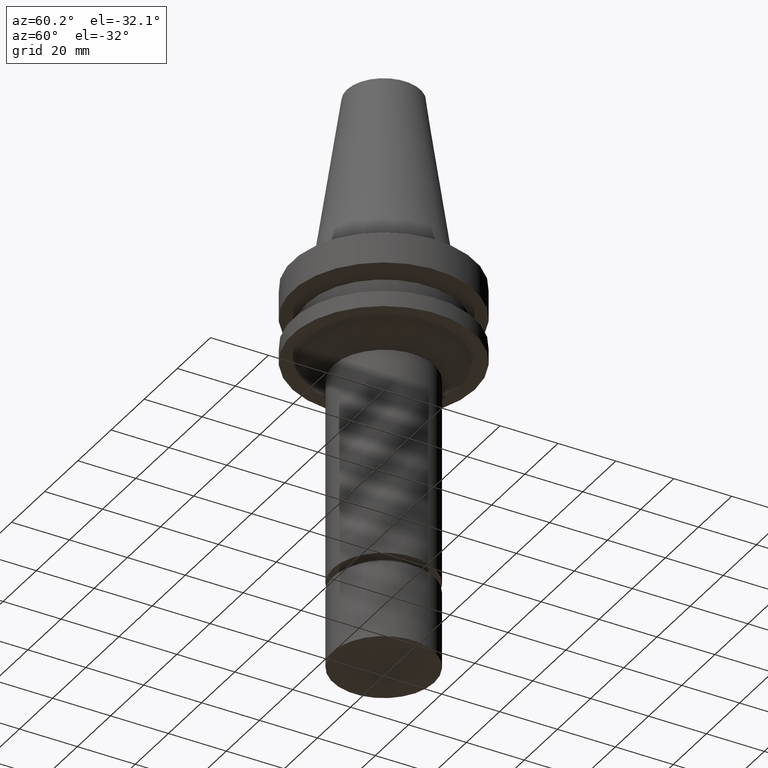
[diagram: clean part render]
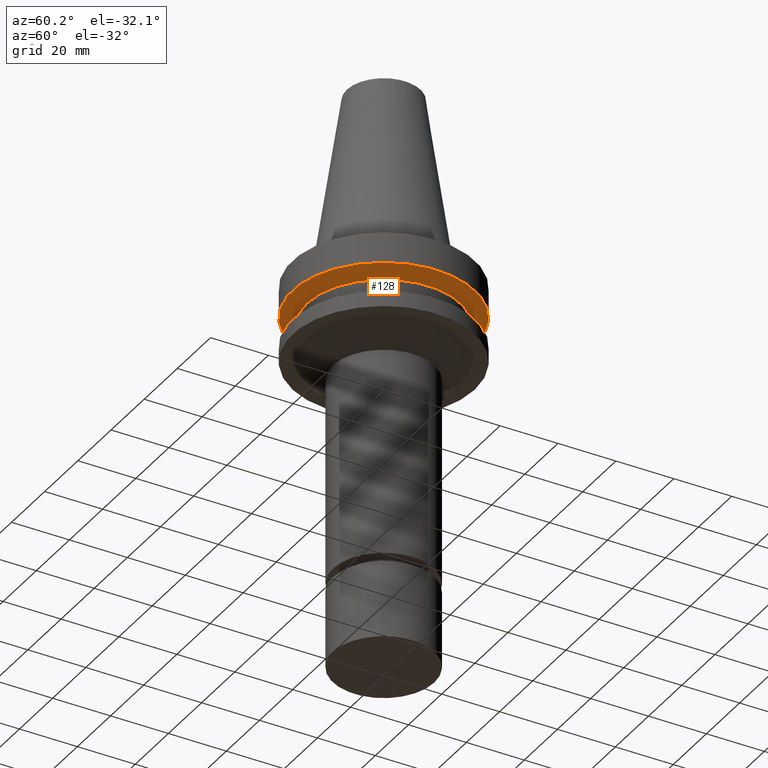
[diagram: same view with one face highlighted and labeled with its STEP entity id]
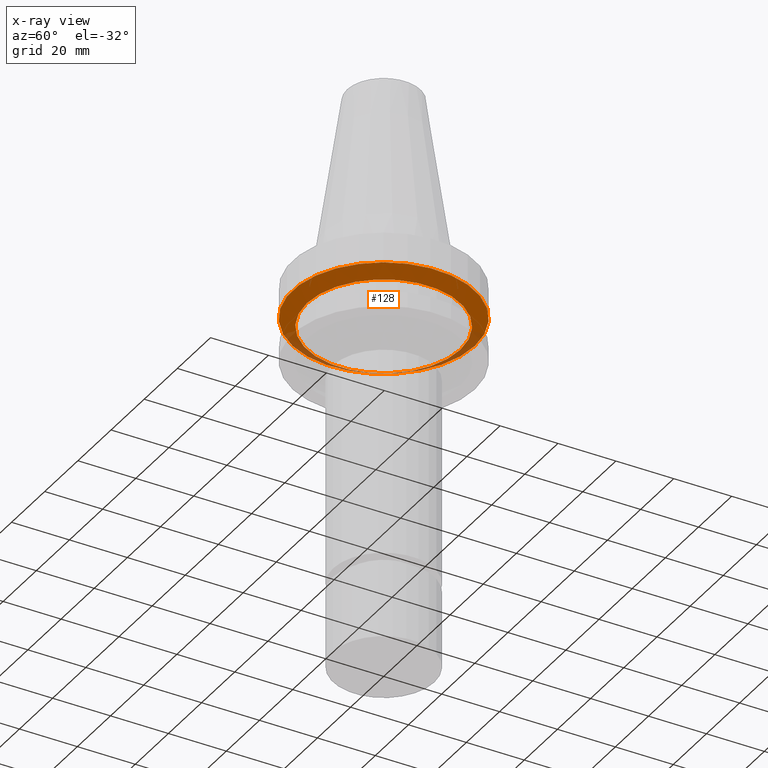
[diagram: x-ray of the same camera — body ghosted, the highlighted face saturated]
A machine part, auxiliary view. The second image highlights one B-rep face of the part: STEP entity #128.
The next image is the same camera in x-ray: the body ghosted, the highlighted face saturated — about 15% of this face is hidden behind the body in this view.
In plain terms, the highlighted conical surface has half-angle 60 deg.
Its self-contained STEP definition (entity closure, byte-faithful):
#128=ADVANCED_FACE('Unnamed[1]',(#284,#285),#286,.T.);
#135=EDGE_CURVE('Unnamed[1]',#296,#296,#297,.T.);
#137=EDGE_CURVE('Unnamed[1]',#299,#299,#300,.T.);
#284=FACE_BOUND('',#480,.T.);
#285=FACE_BOUND('',#481,.T.);
#286=CONICAL_SURFACE('',#482,28.9999999999999,1.04719755119657);
#296=VERTEX_POINT('',#495);
#297=CIRCLE('',#496,31.5000000000003);
#299=VERTEX_POINT('',#499);
#300=CIRCLE('',#500,26.4999999999994);
#480=EDGE_LOOP('',(#675));
#481=EDGE_LOOP('',(#676));
#482=AXIS2_PLACEMENT_3D('',#677,#678,#679);
#495=CARTESIAN_POINT('',(7.08182973902924E-016,31.5000000000004,-11.5655056526664));
#496=AXIS2_PLACEMENT_3D('',#689,#690,#691);
#499=CARTESIAN_POINT('',(8.8494551369045E-016,26.4999999999995,-14.4522569986152));
#500=AXIS2_PLACEMENT_3D('',#692,#693,#694);
#675=ORIENTED_EDGE('',*,*,#137,.F.);
#676=ORIENTED_EDGE('',*,*,#135,.T.);
#677=CARTESIAN_POINT('',(7.96564243796687E-016,6.97194689059831E-014,-13.0088813256408));
#678=DIRECTION('',(-6.12323399573676E-017,9.38040710727802E-017,1.0));
#679=DIRECTION('',(9.16690038549528E-034,1.0,-9.38040710727802E-017));
#689=CARTESIAN_POINT('',(7.08182973902924E-016,6.98548634201955E-014,-11.5655056526664));
#690=DIRECTION('',(6.12323399573677E-017,-9.38040710726656E-017,-1.0));
#691=DIRECTION('',(9.16690038527719E-034,1.0,-9.38040710726656E-017));
#692=CARTESIAN_POINT('',(8.8494551369045E-016,6.95840743917707E-014,-14.4522569986152));
#693=DIRECTION('',(6.12323399573677E-017,-9.38040710727945E-017,-1.0));
#694=DIRECTION('',(9.16690038548378E-034,1.0,-9.38040710727945E-017));